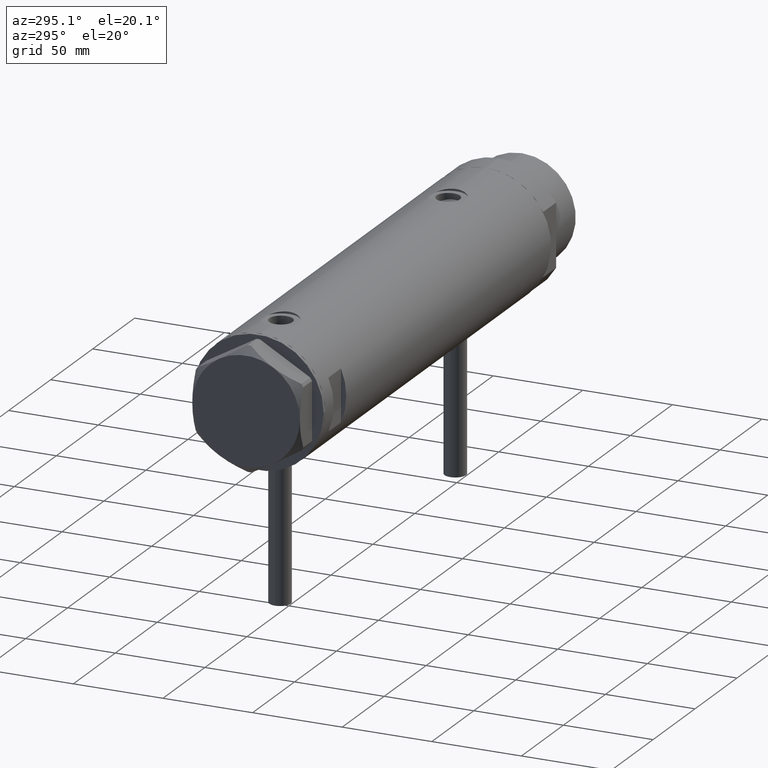
[diagram: clean part render]
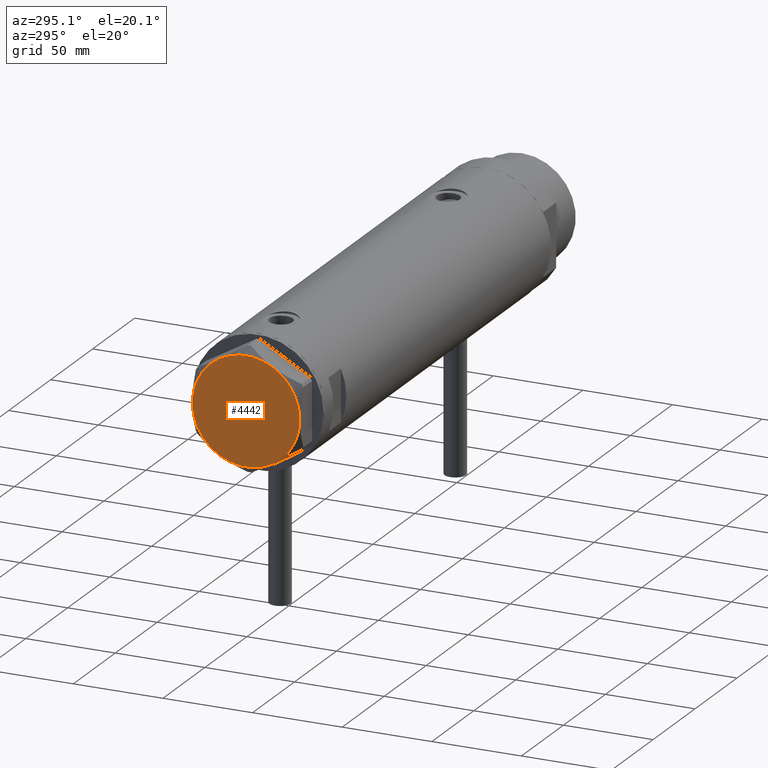
[diagram: same view with one face highlighted and labeled with its STEP entity id]
A machine part, auxiliary view. The second image highlights one B-rep face of the part: STEP entity #4442.
In plain terms, the highlighted planar face has unit normal (-1, -0, 0).
Its self-contained STEP definition (entity closure, byte-faithful):
#88 = EDGE_CURVE ( 'NONE', #4574, #401, #4159, .T. ) ;
#91 = CARTESIAN_POINT ( 'NONE',  ( 0.000000000000000000, 0.000000000000000000, 14.50000000000000000 ) ) ;
#107 = CIRCLE ( 'NONE', #710, 30.00000000000000000 ) ;
#116 = DIRECTION ( 'NONE',  ( 1.000000000000000000, 0.000000000000000000, 0.000000000000000000 ) ) ;
#134 = DIRECTION ( 'NONE',  ( 0.000000000000000000, 0.000000000000000000, 1.000000000000000000 ) ) ;
#165 = CIRCLE ( 'NONE', #3946, 30.00000000000000000 ) ;
#266 = DIRECTION ( 'NONE',  ( 0.000000000000000000, 0.000000000000000000, 1.000000000000000000 ) ) ;
#303 = ORIENTED_EDGE ( 'NONE', *, *, #88, .T. ) ;
#401 = VERTEX_POINT ( 'NONE', #3362 ) ;
#465 = DIRECTION ( 'NONE',  ( 1.000000000000000000, 0.000000000000000000, 0.000000000000000000 ) ) ;
#667 = ORIENTED_EDGE ( 'NONE', *, *, #1509, .T. ) ;
#710 = AXIS2_PLACEMENT_3D ( 'NONE', #3015, #2606, #465 ) ;
#744 = DIRECTION ( 'NONE',  ( 1.000000000000000000, 0.000000000000000000, 0.000000000000000000 ) ) ;
#771 = AXIS2_PLACEMENT_3D ( 'NONE', #4200, #1521, #744 ) ;
#772 = CARTESIAN_POINT ( 'NONE',  ( -30.00000000000000000, 0.000000000000000000, 14.50000000000000000 ) ) ;
#986 = DIRECTION ( 'NONE',  ( 1.000000000000000000, 0.000000000000000000, 0.000000000000000000 ) ) ;
#1010 = AXIS2_PLACEMENT_3D ( 'NONE', #2835, #4293, #986 ) ;
#1252 = ORIENTED_EDGE ( 'NONE', *, *, #2087, .T. ) ;
#1374 = FACE_OUTER_BOUND ( 'NONE', #1688, .T. ) ;
#1509 = EDGE_CURVE ( 'NONE', #2636, #4574, #2163, .T. ) ;
#1521 = DIRECTION ( 'NONE',  ( 0.000000000000000000, 0.000000000000000000, 1.000000000000000000 ) ) ;
#1615 = CIRCLE ( 'NONE', #771, 30.00000000000000000 ) ;
#1688 = EDGE_LOOP ( 'NONE', ( #3484, #1252, #4111, #667, #303, #4738 ) ) ;
#1787 = CARTESIAN_POINT ( 'NONE',  ( 0.000000000000000000, 0.000000000000000000, 14.50000000000000000 ) ) ;
#2053 = DIRECTION ( 'NONE',  ( 1.000000000000000000, 0.000000000000000000, 0.000000000000000000 ) ) ;
#2087 = EDGE_CURVE ( 'NONE', #4676, #3760, #1615, .T. ) ;
#2129 = PLANE ( 'NONE',  #3278 ) ;
#2158 = EDGE_CURVE ( 'NONE', #3760, #2636, #165, .T. ) ;
#2163 = CIRCLE ( 'NONE', #1010, 30.00000000000000000 ) ;
#2222 = AXIS2_PLACEMENT_3D ( 'NONE', #3444, #2360, #3908 ) ;
#2360 = DIRECTION ( 'NONE',  ( 0.000000000000000000, 0.000000000000000000, 1.000000000000000000 ) ) ;
#2494 = CIRCLE ( 'NONE', #2961, 30.00000000000000000 ) ;
#2606 = DIRECTION ( 'NONE',  ( 0.000000000000000000, 0.000000000000000000, 1.000000000000000000 ) ) ;
#2636 = VERTEX_POINT ( 'NONE', #2949 ) ;
#2835 = CARTESIAN_POINT ( 'NONE',  ( 0.000000000000000000, 0.000000000000000000, 14.50000000000000000 ) ) ;
#2885 = CARTESIAN_POINT ( 'NONE',  ( 0.000000000000000000, 0.000000000000000000, 14.50000000000000000 ) ) ;
#2887 = EDGE_CURVE ( 'NONE', #401, #4002, #2494, .T. ) ;
#2949 = CARTESIAN_POINT ( 'NONE',  ( -14.99999999999999645, 25.98076211353316367, 14.50000000000000000 ) ) ;
#2961 = AXIS2_PLACEMENT_3D ( 'NONE', #91, #134, #116 ) ;
#3015 = CARTESIAN_POINT ( 'NONE',  ( 0.000000000000000000, 0.000000000000000000, 14.50000000000000000 ) ) ;
#3278 = AXIS2_PLACEMENT_3D ( 'NONE', #1787, #4015, #4354 ) ;
#3362 = CARTESIAN_POINT ( 'NONE',  ( -14.99999999999999645, -25.98076211353316367, 14.50000000000000000 ) ) ;
#3444 = CARTESIAN_POINT ( 'NONE',  ( 0.000000000000000000, 0.000000000000000000, 14.50000000000000000 ) ) ;
#3484 = ORIENTED_EDGE ( 'NONE', *, *, #4171, .T. ) ;
#3556 = CARTESIAN_POINT ( 'NONE',  ( 30.00000000000000000, 9.013887592422954582E-15, 14.50000000000000000 ) ) ;
#3640 = CARTESIAN_POINT ( 'NONE',  ( 14.99999999999998757, -25.98076211353316722, 14.50000000000000000 ) ) ;
#3760 = VERTEX_POINT ( 'NONE', #3839 ) ;
#3839 = CARTESIAN_POINT ( 'NONE',  ( 14.99999999999999467, 25.98076211353316367, 14.50000000000000000 ) ) ;
#3908 = DIRECTION ( 'NONE',  ( 1.000000000000000000, 0.000000000000000000, 0.000000000000000000 ) ) ;
#3946 = AXIS2_PLACEMENT_3D ( 'NONE', #2885, #266, #2053 ) ;
#4002 = VERTEX_POINT ( 'NONE', #3640 ) ;
#4015 = DIRECTION ( 'NONE',  ( 0.000000000000000000, 0.000000000000000000, 1.000000000000000000 ) ) ;
#4111 = ORIENTED_EDGE ( 'NONE', *, *, #2158, .T. ) ;
#4159 = CIRCLE ( 'NONE', #2222, 30.00000000000000000 ) ;
#4171 = EDGE_CURVE ( 'NONE', #4002, #4676, #107, .T. ) ;
#4200 = CARTESIAN_POINT ( 'NONE',  ( 0.000000000000000000, 0.000000000000000000, 14.50000000000000000 ) ) ;
#4293 = DIRECTION ( 'NONE',  ( 0.000000000000000000, 0.000000000000000000, 1.000000000000000000 ) ) ;
#4354 = DIRECTION ( 'NONE',  ( 1.000000000000000000, 0.000000000000000000, -0.000000000000000000 ) ) ;
#4442 = ADVANCED_FACE ( 'NONE', ( #1374 ), #2129, .T. ) ;
#4574 = VERTEX_POINT ( 'NONE', #772 ) ;
#4676 = VERTEX_POINT ( 'NONE', #3556 ) ;
#4738 = ORIENTED_EDGE ( 'NONE', *, *, #2887, .T. ) ;